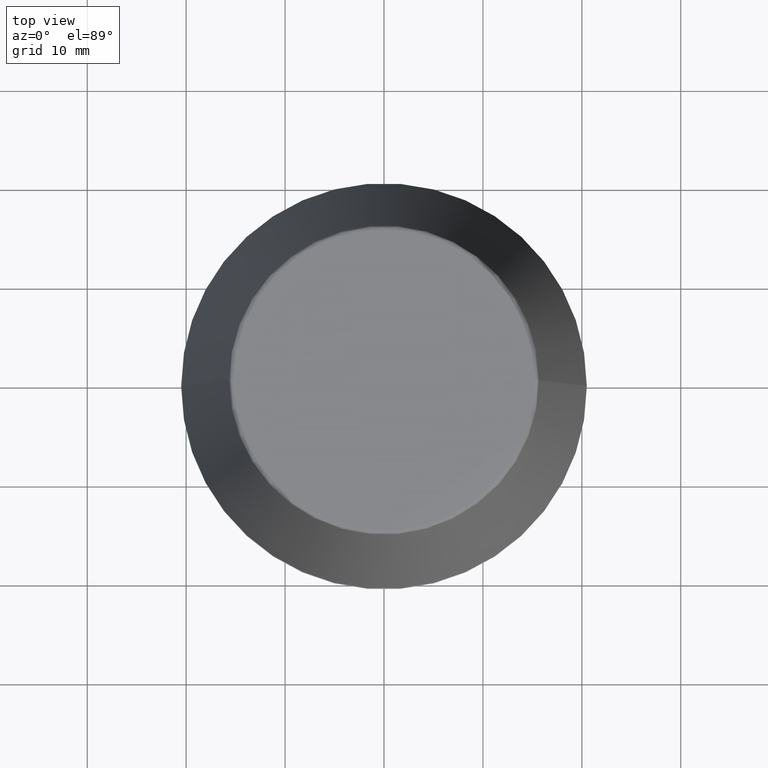
[diagram: clean part render]
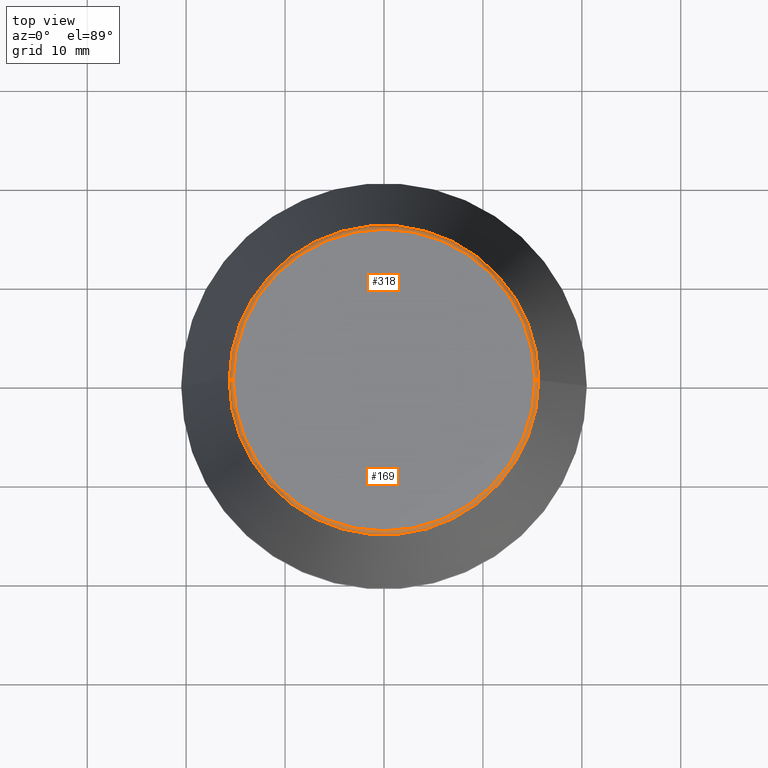
[diagram: same view with one multi-face feature highlighted, each face labeled with its STEP entity id]
A machine part, top view. The highlighted faces form ONE feature: a constant-radius fillet chain: 2 tangent blend faces with common blend radius 0.4 mm. The faces share edges in the B-rep.
Their STEP definitions:
[1] entity #318 (Torus):
#4 = CIRCLE ( 'NONE', #77, 15.24773554530077600 ) ;
#11 = AXIS2_PLACEMENT_3D ( 'NONE', #56, #340, #384 ) ;
#16 = EDGE_CURVE ( 'NONE', #366, #275, #254, .T. ) ;
#25 = CARTESIAN_POINT ( 'NONE',  ( 15.24773554530077600, 0.0000000000000000000, 45.60000000000000100 ) ) ;
#26 = EDGE_LOOP ( 'NONE', ( #370, #152, #321, #359 ) ) ;
#56 = CARTESIAN_POINT ( 'NONE',  ( 0.0000000000000000000, 0.0000000000000000000, 45.65566924038402900 ) ) ;
#61 = CARTESIAN_POINT ( 'NONE',  ( -15.24773554530077600, 1.867309052979791600E-015, 45.60000000000000100 ) ) ;
#62 = CIRCLE ( 'NONE', #11, 15.64384277279740400 ) ;
#64 = CARTESIAN_POINT ( 'NONE',  ( 15.64384277279740400, 2.213191991290356800E-015, 45.65566924038402900 ) ) ;
#77 = AXIS2_PLACEMENT_3D ( 'NONE', #313, #353, #324 ) ;
#103 = VERTEX_POINT ( 'NONE', #377 ) ;
#112 = VERTEX_POINT ( 'NONE', #225 ) ;
#114 = DIRECTION ( 'NONE',  ( 0.0000000000000000000, -1.000000000000000000, 0.0000000000000000000 ) ) ;
#125 = CIRCLE ( 'NONE', #222, 0.3999999999999975800 ) ;
#152 = ORIENTED_EDGE ( 'NONE', *, *, #387, .T. ) ;
#154 = CARTESIAN_POINT ( 'NONE',  ( 15.24773554530077600, 0.0000000000000000000, 46.00000000000000000 ) ) ;
#171 = FACE_OUTER_BOUND ( 'NONE', #26, .T. ) ;
#178 = AXIS2_PLACEMENT_3D ( 'NONE', #278, #192, #319 ) ;
#192 = DIRECTION ( 'NONE',  ( -0.0000000000000000000, -0.0000000000000000000, 1.000000000000000000 ) ) ;
#203 = DIRECTION ( 'NONE',  ( -1.000000000000000000, 1.224646799147353900E-016, 0.0000000000000000000 ) ) ;
#215 = EDGE_CURVE ( 'NONE', #275, #103, #4, .T. ) ;
#222 = AXIS2_PLACEMENT_3D ( 'NONE', #61, #290, #203 ) ;
#225 = CARTESIAN_POINT ( 'NONE',  ( -15.64384277279740400, 0.0000000000000000000, 45.65566924038402900 ) ) ;
#254 = CIRCLE ( 'NONE', #293, 0.3999999999999975800 ) ;
#275 = VERTEX_POINT ( 'NONE', #154 ) ;
#278 = CARTESIAN_POINT ( 'NONE',  ( 0.0000000000000000000, 0.0000000000000000000, 45.60000000000000100 ) ) ;
#290 = DIRECTION ( 'NONE',  ( 1.224646799147353200E-016, 1.000000000000000000, 0.0000000000000000000 ) ) ;
#293 = AXIS2_PLACEMENT_3D ( 'NONE', #25, #114, #296 ) ;
#296 = DIRECTION ( 'NONE',  ( 0.0000000000000000000, 0.0000000000000000000, -1.000000000000000000 ) ) ;
#313 = CARTESIAN_POINT ( 'NONE',  ( 0.0000000000000000000, 0.0000000000000000000, 46.00000000000000000 ) ) ;
#318 = ADVANCED_FACE ( 'NONE', ( #171 ), #347, .T. ) ;
#319 = DIRECTION ( 'NONE',  ( 1.000000000000000000, 0.0000000000000000000, 0.0000000000000000000 ) ) ;
#321 = ORIENTED_EDGE ( 'NONE', *, *, #215, .F. ) ;
#324 = DIRECTION ( 'NONE',  ( 1.000000000000000000, 0.0000000000000000000, 0.0000000000000000000 ) ) ;
#340 = DIRECTION ( 'NONE',  ( -0.0000000000000000000, -0.0000000000000000000, 1.000000000000000000 ) ) ;
#347 = TOROIDAL_SURFACE ( 'NONE', #178, 15.24773554530077600, 0.3999999999999991900 ) ;
#353 = DIRECTION ( 'NONE',  ( -0.0000000000000000000, -0.0000000000000000000, 1.000000000000000000 ) ) ;
#359 = ORIENTED_EDGE ( 'NONE', *, *, #16, .F. ) ;
#362 = EDGE_CURVE ( 'NONE', #366, #112, #62, .T. ) ;
#366 = VERTEX_POINT ( 'NONE', #64 ) ;
#370 = ORIENTED_EDGE ( 'NONE', *, *, #362, .T. ) ;
#377 = CARTESIAN_POINT ( 'NONE',  ( -15.24773554530077600, 1.891563625393435400E-015, 46.00000000000000000 ) ) ;
#384 = DIRECTION ( 'NONE',  ( 1.000000000000000000, 0.0000000000000000000, 0.0000000000000000000 ) ) ;
#387 = EDGE_CURVE ( 'NONE', #112, #103, #125, .T. ) ;
[2] entity #169 (Torus):
#8 = CARTESIAN_POINT ( 'NONE',  ( 0.0000000000000000000, 0.0000000000000000000, 45.65566924038402900 ) ) ;
#9 = ORIENTED_EDGE ( 'NONE', *, *, #387, .F. ) ;
#16 = EDGE_CURVE ( 'NONE', #366, #275, #254, .T. ) ;
#18 = DIRECTION ( 'NONE',  ( 1.000000000000000000, 0.0000000000000000000, 0.0000000000000000000 ) ) ;
#24 = FACE_OUTER_BOUND ( 'NONE', #211, .T. ) ;
#25 = CARTESIAN_POINT ( 'NONE',  ( 15.24773554530077600, 0.0000000000000000000, 45.60000000000000100 ) ) ;
#61 = CARTESIAN_POINT ( 'NONE',  ( -15.24773554530077600, 1.867309052979791600E-015, 45.60000000000000100 ) ) ;
#64 = CARTESIAN_POINT ( 'NONE',  ( 15.64384277279740400, 2.213191991290356800E-015, 45.65566924038402900 ) ) ;
#73 = DIRECTION ( 'NONE',  ( -0.0000000000000000000, -0.0000000000000000000, 1.000000000000000000 ) ) ;
#101 = AXIS2_PLACEMENT_3D ( 'NONE', #8, #257, #190 ) ;
#103 = VERTEX_POINT ( 'NONE', #377 ) ;
#112 = VERTEX_POINT ( 'NONE', #225 ) ;
#114 = DIRECTION ( 'NONE',  ( 0.0000000000000000000, -1.000000000000000000, 0.0000000000000000000 ) ) ;
#125 = CIRCLE ( 'NONE', #222, 0.3999999999999975800 ) ;
#141 = TOROIDAL_SURFACE ( 'NONE', #172, 15.24773554530077600, 0.3999999999999991900 ) ;
#154 = CARTESIAN_POINT ( 'NONE',  ( 15.24773554530077600, 0.0000000000000000000, 46.00000000000000000 ) ) ;
#169 = ADVANCED_FACE ( 'NONE', ( #24 ), #141, .T. ) ;
#172 = AXIS2_PLACEMENT_3D ( 'NONE', #260, #223, #18 ) ;
#184 = ORIENTED_EDGE ( 'NONE', *, *, #16, .T. ) ;
#190 = DIRECTION ( 'NONE',  ( 1.000000000000000000, 0.0000000000000000000, 0.0000000000000000000 ) ) ;
#203 = DIRECTION ( 'NONE',  ( -1.000000000000000000, 1.224646799147353900E-016, 0.0000000000000000000 ) ) ;
#211 = EDGE_LOOP ( 'NONE', ( #9, #352, #184, #232 ) ) ;
#222 = AXIS2_PLACEMENT_3D ( 'NONE', #61, #290, #203 ) ;
#223 = DIRECTION ( 'NONE',  ( -0.0000000000000000000, -0.0000000000000000000, 1.000000000000000000 ) ) ;
#225 = CARTESIAN_POINT ( 'NONE',  ( -15.64384277279740400, 0.0000000000000000000, 45.65566924038402900 ) ) ;
#228 = AXIS2_PLACEMENT_3D ( 'NONE', #247, #73, #283 ) ;
#232 = ORIENTED_EDGE ( 'NONE', *, *, #276, .F. ) ;
#247 = CARTESIAN_POINT ( 'NONE',  ( 0.0000000000000000000, 0.0000000000000000000, 46.00000000000000000 ) ) ;
#254 = CIRCLE ( 'NONE', #293, 0.3999999999999975800 ) ;
#257 = DIRECTION ( 'NONE',  ( -0.0000000000000000000, -0.0000000000000000000, 1.000000000000000000 ) ) ;
#260 = CARTESIAN_POINT ( 'NONE',  ( 0.0000000000000000000, 0.0000000000000000000, 45.60000000000000100 ) ) ;
#270 = EDGE_CURVE ( 'NONE', #112, #366, #277, .T. ) ;
#275 = VERTEX_POINT ( 'NONE', #154 ) ;
#276 = EDGE_CURVE ( 'NONE', #103, #275, #334, .T. ) ;
#277 = CIRCLE ( 'NONE', #101, 15.64384277279740400 ) ;
#283 = DIRECTION ( 'NONE',  ( 1.000000000000000000, 0.0000000000000000000, 0.0000000000000000000 ) ) ;
#290 = DIRECTION ( 'NONE',  ( 1.224646799147353200E-016, 1.000000000000000000, 0.0000000000000000000 ) ) ;
#293 = AXIS2_PLACEMENT_3D ( 'NONE', #25, #114, #296 ) ;
#296 = DIRECTION ( 'NONE',  ( 0.0000000000000000000, 0.0000000000000000000, -1.000000000000000000 ) ) ;
#334 = CIRCLE ( 'NONE', #228, 15.24773554530077600 ) ;
#352 = ORIENTED_EDGE ( 'NONE', *, *, #270, .T. ) ;
#366 = VERTEX_POINT ( 'NONE', #64 ) ;
#377 = CARTESIAN_POINT ( 'NONE',  ( -15.24773554530077600, 1.891563625393435400E-015, 46.00000000000000000 ) ) ;
#387 = EDGE_CURVE ( 'NONE', #112, #103, #125, .T. ) ;